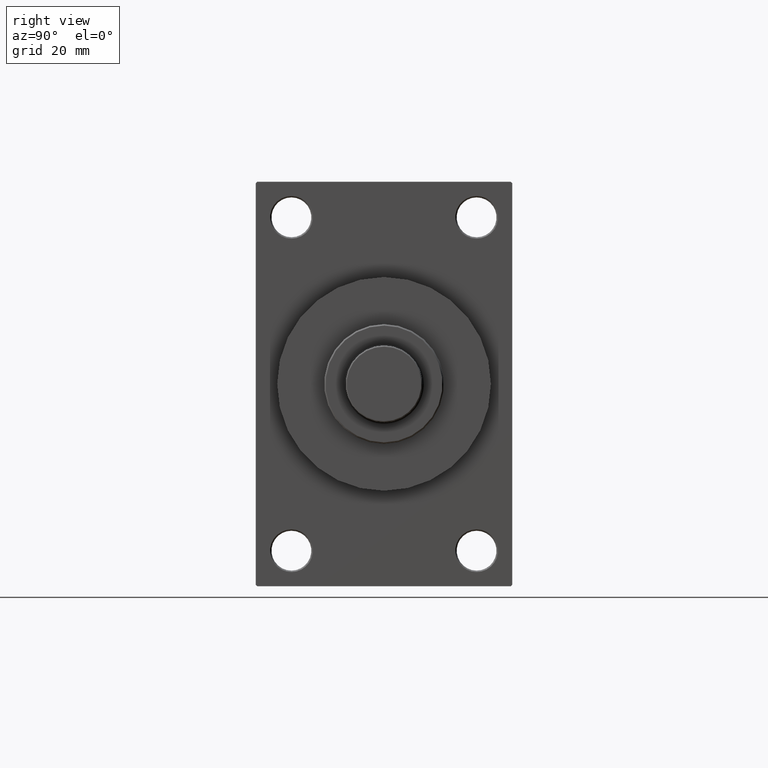
[diagram: clean part render]
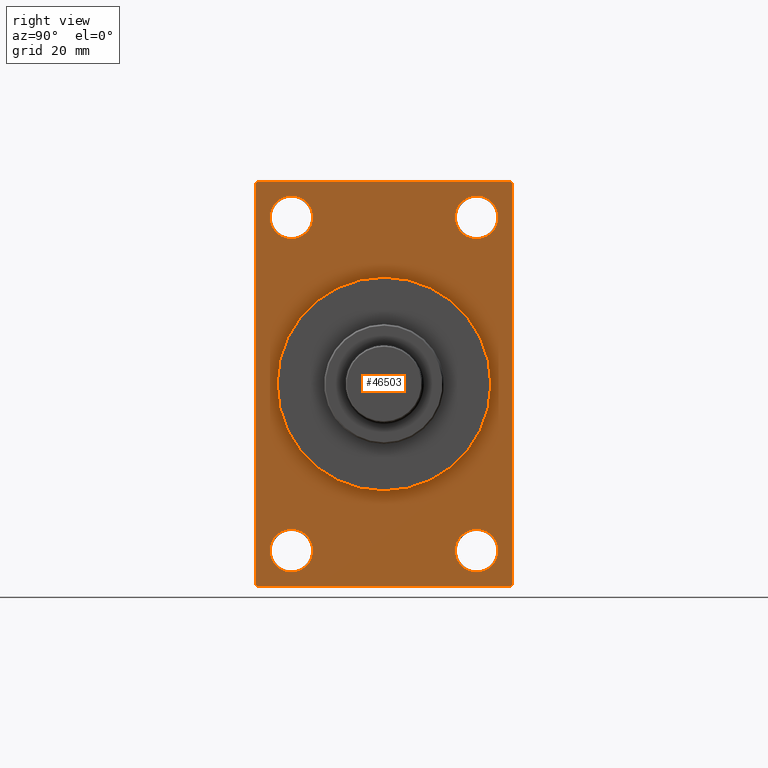
[diagram: same view with one face highlighted and labeled with its STEP entity id]
A machine part, right view. The second image highlights one B-rep face of the part: STEP entity #46503.
In plain terms, the highlighted planar face has unit normal (-1, 0, 0).
Its self-contained STEP definition (entity closure, byte-faithful):
#310 = VERTEX_POINT ( 'NONE', #25509 ) ;
#594 = CARTESIAN_POINT ( 'NONE',  ( 128.0000000000000000, -32.50000000000000000, -51.00000000000000711 ) ) ;
#634 = ORIENTED_EDGE ( 'NONE', *, *, #32244, .T. ) ;
#1052 = CIRCLE ( 'NONE', #46469, 7.499999999999909406 ) ;
#1113 = EDGE_CURVE ( 'NONE', #310, #42053, #42116, .T. ) ;
#1806 = FACE_OUTER_BOUND ( 'NONE', #30801, .T. ) ;
#1874 = DIRECTION ( 'NONE',  ( -0.000000000000000000, -0.7071067811865622277, -0.7071067811865328068 ) ) ;
#1944 = ORIENTED_EDGE ( 'NONE', *, *, #17475, .F. ) ;
#2051 = DIRECTION ( 'NONE',  ( -1.000000000000000000, 0.000000000000000000, -0.000000000000000000 ) ) ;
#2111 = LINE ( 'NONE', #31743, #6573 ) ;
#2783 = DIRECTION ( 'NONE',  ( 0.000000000000000000, 0.000000000000000000, 1.000000000000000000 ) ) ;
#3146 = CARTESIAN_POINT ( 'NONE',  ( 128.0000000000000000, 45.00000000000001421, -70.99999999999998579 ) ) ;
#3278 = CARTESIAN_POINT ( 'NONE',  ( 128.0000000000000000, -44.49999999999995026, 70.99999999999998579 ) ) ;
#3533 = LINE ( 'NONE', #29550, #22862 ) ;
#3542 = AXIS2_PLACEMENT_3D ( 'NONE', #32811, #44167, #7774 ) ;
#3574 = AXIS2_PLACEMENT_3D ( 'NONE', #33011, #32284, #40017 ) ;
#3628 = VERTEX_POINT ( 'NONE', #36366 ) ;
#4149 = CARTESIAN_POINT ( 'NONE',  ( 128.0000000000000000, -32.50000000000000000, 51.00000000000009948 ) ) ;
#4231 = CARTESIAN_POINT ( 'NONE',  ( 128.0000000000000000, 32.50000000000000711, -51.00000000000001421 ) ) ;
#4435 = ORIENTED_EDGE ( 'NONE', *, *, #46058, .T. ) ;
#4474 = AXIS2_PLACEMENT_3D ( 'NONE', #35065, #38687, #28308 ) ;
#4612 = EDGE_CURVE ( 'NONE', #3628, #37193, #18082, .T. ) ;
#4850 = VERTEX_POINT ( 'NONE', #26195 ) ;
#5290 = LINE ( 'NONE', #31060, #16371 ) ;
#5417 = VERTEX_POINT ( 'NONE', #4149 ) ;
#5922 = EDGE_LOOP ( 'NONE', ( #4435, #28217 ) ) ;
#5997 = EDGE_CURVE ( 'NONE', #19362, #36419, #2111, .T. ) ;
#6162 = DIRECTION ( 'NONE',  ( -0.000000000000000000, 0.000000000000000000, 1.000000000000000000 ) ) ;
#6244 = AXIS2_PLACEMENT_3D ( 'NONE', #27636, #46203, #16340 ) ;
#6573 = VECTOR ( 'NONE', #1874, 1000.000000000000000 ) ;
#7186 = CIRCLE ( 'NONE', #13315, 7.499999999999978684 ) ;
#7774 = DIRECTION ( 'NONE',  ( 0.000000000000000000, 0.000000000000000000, 1.000000000000000000 ) ) ;
#8314 = CARTESIAN_POINT ( 'NONE',  ( 128.0000000000000000, 45.00000000000002132, 71.00000000000000000 ) ) ;
#9039 = EDGE_CURVE ( 'NONE', #36419, #36480, #3533, .T. ) ;
#9936 = CARTESIAN_POINT ( 'NONE',  ( 128.0000000000000000, 32.50000000000000711, 58.50000000000000711 ) ) ;
#10739 = VERTEX_POINT ( 'NONE', #32753 ) ;
#11460 = VERTEX_POINT ( 'NONE', #19209 ) ;
#12285 = DIRECTION ( 'NONE',  ( -0.000000000000000000, 0.7071067811865574537, 0.7071067811865376918 ) ) ;
#12348 = EDGE_CURVE ( 'NONE', #35743, #31897, #23705, .T. ) ;
#12642 = VECTOR ( 'NONE', #24374, 999.9999999999998863 ) ;
#13315 = AXIS2_PLACEMENT_3D ( 'NONE', #22820, #15818, #26657 ) ;
#13529 = DIRECTION ( 'NONE',  ( -1.000000000000000000, 0.000000000000000000, -0.000000000000000000 ) ) ;
#13795 = CARTESIAN_POINT ( 'NONE',  ( 128.0000000000000000, -32.50000000000000000, -65.99999999999995737 ) ) ;
#13929 = EDGE_LOOP ( 'NONE', ( #29353, #21802 ) ) ;
#14171 = DIRECTION ( 'NONE',  ( 0.000000000000000000, 0.000000000000000000, -1.000000000000000000 ) ) ;
#14233 = LINE ( 'NONE', #3146, #29235 ) ;
#14664 = EDGE_LOOP ( 'NONE', ( #20687, #45993 ) ) ;
#15818 = DIRECTION ( 'NONE',  ( -1.000000000000000000, 0.000000000000000000, -0.000000000000000000 ) ) ;
#16340 = DIRECTION ( 'NONE',  ( 0.000000000000000000, 0.000000000000000000, 1.000000000000000000 ) ) ;
#16371 = VECTOR ( 'NONE', #12285, 999.9999999999998863 ) ;
#16909 = EDGE_CURVE ( 'NONE', #25109, #11460, #14233, .T. ) ;
#17096 = VERTEX_POINT ( 'NONE', #42863 ) ;
#17475 = EDGE_CURVE ( 'NONE', #42053, #310, #44571, .T. ) ;
#17535 = EDGE_CURVE ( 'NONE', #46803, #43071, #45315, .T. ) ;
#18082 = CIRCLE ( 'NONE', #22729, 7.499999999999978684 ) ;
#18389 = AXIS2_PLACEMENT_3D ( 'NONE', #29291, #32654, #2783 ) ;
#18756 = FACE_BOUND ( 'NONE', #5922, .T. ) ;
#18896 = DIRECTION ( 'NONE',  ( 0.000000000000000000, 0.000000000000000000, -1.000000000000000000 ) ) ;
#18996 = ORIENTED_EDGE ( 'NONE', *, *, #33983, .T. ) ;
#19023 = CARTESIAN_POINT ( 'NONE',  ( 128.0000000000000000, 45.00000000000002132, 70.50000000000000000 ) ) ;
#19044 = DIRECTION ( 'NONE',  ( -1.000000000000000000, 0.000000000000000000, -0.000000000000000000 ) ) ;
#19209 = CARTESIAN_POINT ( 'NONE',  ( 128.0000000000000000, -44.49999999999994316, -71.00000000000000000 ) ) ;
#19362 = VERTEX_POINT ( 'NONE', #3278 ) ;
#19638 = LINE ( 'NONE', #31400, #34835 ) ;
#19687 = FACE_BOUND ( 'NONE', #14664, .T. ) ;
#19799 = AXIS2_PLACEMENT_3D ( 'NONE', #41042, #26335, #18896 ) ;
#20065 = DIRECTION ( 'NONE',  ( 0.000000000000000000, 0.000000000000000000, 1.000000000000000000 ) ) ;
#20154 = CARTESIAN_POINT ( 'NONE',  ( 128.0000000000000000, 0.000000000000000000, 0.000000000000000000 ) ) ;
#20631 = FACE_BOUND ( 'NONE', #20681, .T. ) ;
#20681 = EDGE_LOOP ( 'NONE', ( #41605, #40040 ) ) ;
#20687 = ORIENTED_EDGE ( 'NONE', *, *, #23279, .T. ) ;
#20773 = CARTESIAN_POINT ( 'NONE',  ( 128.0000000000000000, -44.49999999999997158, -71.00000000000000000 ) ) ;
#21389 = LINE ( 'NONE', #44283, #38622 ) ;
#21802 = ORIENTED_EDGE ( 'NONE', *, *, #28534, .T. ) ;
#22425 = VERTEX_POINT ( 'NONE', #19023 ) ;
#22645 = VECTOR ( 'NONE', #40618, 1000.000000000000000 ) ;
#22729 = AXIS2_PLACEMENT_3D ( 'NONE', #37342, #19044, #33720 ) ;
#22820 = CARTESIAN_POINT ( 'NONE',  ( 128.0000000000000000, 32.50000000000000711, -58.50000000000000000 ) ) ;
#22862 = VECTOR ( 'NONE', #44268, 1000.000000000000000 ) ;
#23279 = EDGE_CURVE ( 'NONE', #5417, #17096, #43976, .T. ) ;
#23485 = CARTESIAN_POINT ( 'NONE',  ( 128.0000000000000000, 44.50000000000004263, -70.99999999999998579 ) ) ;
#23705 = CIRCLE ( 'NONE', #4474, 7.499999999999909406 ) ;
#24307 = CIRCLE ( 'NONE', #3542, 7.499999999999909406 ) ;
#24347 = CIRCLE ( 'NONE', #3574, 7.499999999999985789 ) ;
#24374 = DIRECTION ( 'NONE',  ( 0.000000000000000000, 0.7071067811865771047, -0.7071067811865180408 ) ) ;
#25023 = DIRECTION ( 'NONE',  ( 1.000000000000000000, 0.000000000000000000, 0.000000000000000000 ) ) ;
#25109 = VERTEX_POINT ( 'NONE', #23485 ) ;
#25509 = CARTESIAN_POINT ( 'NONE',  ( 128.0000000000000000, 0.000000000000000000, 37.50000000000000711 ) ) ;
#26195 = CARTESIAN_POINT ( 'NONE',  ( 128.0000000000000000, 45.00000000000001421, -70.50000000000001421 ) ) ;
#26335 = DIRECTION ( 'NONE',  ( 1.000000000000000000, 0.000000000000000000, 0.000000000000000000 ) ) ;
#26387 = EDGE_CURVE ( 'NONE', #25109, #4850, #5290, .T. ) ;
#26657 = DIRECTION ( 'NONE',  ( 0.000000000000000000, 0.000000000000000000, 1.000000000000000000 ) ) ;
#26688 = AXIS2_PLACEMENT_3D ( 'NONE', #20154, #2051, #6162 ) ;
#26850 = DIRECTION ( 'NONE',  ( 0.000000000000000000, -1.000000000000000000, -1.541976423090495387E-16 ) ) ;
#27366 = FACE_BOUND ( 'NONE', #31049, .T. ) ;
#27636 = CARTESIAN_POINT ( 'NONE',  ( 128.0000000000000000, -32.50000000000000000, 58.50000000000000711 ) ) ;
#28217 = ORIENTED_EDGE ( 'NONE', *, *, #17535, .T. ) ;
#28308 = DIRECTION ( 'NONE',  ( 0.000000000000000000, 0.000000000000000000, 1.000000000000000000 ) ) ;
#28461 = LINE ( 'NONE', #20773, #12642 ) ;
#28534 = EDGE_CURVE ( 'NONE', #37193, #3628, #7186, .T. ) ;
#28801 = CARTESIAN_POINT ( 'NONE',  ( 128.0000000000000000, -44.99999999999997158, 70.50000000000000000 ) ) ;
#29235 = VECTOR ( 'NONE', #36646, 1000.000000000000000 ) ;
#29291 = CARTESIAN_POINT ( 'NONE',  ( 128.0000000000000000, -32.50000000000000000, -58.49999999999999289 ) ) ;
#29353 = ORIENTED_EDGE ( 'NONE', *, *, #4612, .T. ) ;
#29550 = CARTESIAN_POINT ( 'NONE',  ( 128.0000000000000000, -44.99999999999997158, 70.99999999999998579 ) ) ;
#29771 = CARTESIAN_POINT ( 'NONE',  ( 128.0000000000000000, -44.99999999999997158, -70.50000000000002842 ) ) ;
#29773 = EDGE_CURVE ( 'NONE', #22425, #4850, #33128, .T. ) ;
#30295 = ORIENTED_EDGE ( 'NONE', *, *, #16909, .F. ) ;
#30801 = EDGE_LOOP ( 'NONE', ( #35214, #47185, #30295, #32135, #32636, #634, #18996, #37688 ) ) ;
#30978 = ORIENTED_EDGE ( 'NONE', *, *, #1113, .F. ) ;
#31049 = EDGE_LOOP ( 'NONE', ( #30978, #1944 ) ) ;
#31060 = CARTESIAN_POINT ( 'NONE',  ( 128.0000000000000000, 45.00000000000001421, -70.50000000000001421 ) ) ;
#31400 = CARTESIAN_POINT ( 'NONE',  ( 128.0000000000000000, 45.00000000000002132, 71.00000000000000000 ) ) ;
#31743 = CARTESIAN_POINT ( 'NONE',  ( 128.0000000000000000, -44.99999999999997158, 70.50000000000000000 ) ) ;
#31897 = VERTEX_POINT ( 'NONE', #45571 ) ;
#32135 = ORIENTED_EDGE ( 'NONE', *, *, #26387, .T. ) ;
#32233 = CARTESIAN_POINT ( 'NONE',  ( 128.0000000000000000, 0.000000000000000000, 0.000000000000000000 ) ) ;
#32244 = EDGE_CURVE ( 'NONE', #22425, #10739, #21389, .T. ) ;
#32284 = DIRECTION ( 'NONE',  ( -1.000000000000000000, 0.000000000000000000, -0.000000000000000000 ) ) ;
#32636 = ORIENTED_EDGE ( 'NONE', *, *, #29773, .F. ) ;
#32654 = DIRECTION ( 'NONE',  ( -1.000000000000000000, 0.000000000000000000, -0.000000000000000000 ) ) ;
#32753 = CARTESIAN_POINT ( 'NONE',  ( 128.0000000000000000, 44.50000000000002132, 71.00000000000000000 ) ) ;
#32811 = CARTESIAN_POINT ( 'NONE',  ( 128.0000000000000000, -32.50000000000000000, 58.50000000000000711 ) ) ;
#33011 = CARTESIAN_POINT ( 'NONE',  ( 128.0000000000000000, -32.50000000000000000, -58.49999999999999289 ) ) ;
#33128 = LINE ( 'NONE', #8314, #22645 ) ;
#33427 = FACE_BOUND ( 'NONE', #13929, .T. ) ;
#33720 = DIRECTION ( 'NONE',  ( 0.000000000000000000, 0.000000000000000000, 1.000000000000000000 ) ) ;
#33983 = EDGE_CURVE ( 'NONE', #10739, #19362, #19638, .T. ) ;
#34835 = VECTOR ( 'NONE', #26850, 1000.000000000000000 ) ;
#35065 = CARTESIAN_POINT ( 'NONE',  ( 128.0000000000000000, 32.50000000000000711, 58.50000000000000711 ) ) ;
#35214 = ORIENTED_EDGE ( 'NONE', *, *, #9039, .T. ) ;
#35743 = VERTEX_POINT ( 'NONE', #46196 ) ;
#36075 = AXIS2_PLACEMENT_3D ( 'NONE', #32233, #25023, #14171 ) ;
#36366 = CARTESIAN_POINT ( 'NONE',  ( 128.0000000000000000, 32.50000000000000711, -65.99999999999997158 ) ) ;
#36419 = VERTEX_POINT ( 'NONE', #28801 ) ;
#36480 = VERTEX_POINT ( 'NONE', #29771 ) ;
#36646 = DIRECTION ( 'NONE',  ( 0.000000000000000000, -1.000000000000000000, -1.541976423090495633E-16 ) ) ;
#37193 = VERTEX_POINT ( 'NONE', #4231 ) ;
#37342 = CARTESIAN_POINT ( 'NONE',  ( 128.0000000000000000, 32.50000000000000711, -58.50000000000000000 ) ) ;
#37646 = EDGE_CURVE ( 'NONE', #36480, #11460, #28461, .T. ) ;
#37688 = ORIENTED_EDGE ( 'NONE', *, *, #5997, .T. ) ;
#38224 = PLANE ( 'NONE',  #26688 ) ;
#38622 = VECTOR ( 'NONE', #46929, 1000.000000000000114 ) ;
#38687 = DIRECTION ( 'NONE',  ( -1.000000000000000000, 0.000000000000000000, -0.000000000000000000 ) ) ;
#38935 = EDGE_CURVE ( 'NONE', #31897, #35743, #1052, .T. ) ;
#40017 = DIRECTION ( 'NONE',  ( 0.000000000000000000, 0.000000000000000000, 1.000000000000000000 ) ) ;
#40040 = ORIENTED_EDGE ( 'NONE', *, *, #12348, .T. ) ;
#40618 = DIRECTION ( 'NONE',  ( 0.000000000000000000, -4.886545002751570165E-17, -1.000000000000000000 ) ) ;
#41042 = CARTESIAN_POINT ( 'NONE',  ( 128.0000000000000000, 0.000000000000000000, 0.000000000000000000 ) ) ;
#41605 = ORIENTED_EDGE ( 'NONE', *, *, #38935, .T. ) ;
#42053 = VERTEX_POINT ( 'NONE', #46389 ) ;
#42116 = CIRCLE ( 'NONE', #19799, 37.50000000000000711 ) ;
#42863 = CARTESIAN_POINT ( 'NONE',  ( 128.0000000000000000, -32.50000000000000000, 65.99999999999991473 ) ) ;
#43071 = VERTEX_POINT ( 'NONE', #13795 ) ;
#43976 = CIRCLE ( 'NONE', #6244, 7.499999999999909406 ) ;
#44167 = DIRECTION ( 'NONE',  ( -1.000000000000000000, 0.000000000000000000, -0.000000000000000000 ) ) ;
#44268 = DIRECTION ( 'NONE',  ( 0.000000000000000000, 0.000000000000000000, -1.000000000000000000 ) ) ;
#44283 = CARTESIAN_POINT ( 'NONE',  ( 128.0000000000000000, 44.50000000000002132, 71.00000000000000000 ) ) ;
#44571 = CIRCLE ( 'NONE', #36075, 37.50000000000000711 ) ;
#44951 = EDGE_CURVE ( 'NONE', #17096, #5417, #24307, .T. ) ;
#45315 = CIRCLE ( 'NONE', #18389, 7.499999999999985789 ) ;
#45571 = CARTESIAN_POINT ( 'NONE',  ( 128.0000000000000000, 32.50000000000000711, 51.00000000000009948 ) ) ;
#45993 = ORIENTED_EDGE ( 'NONE', *, *, #44951, .T. ) ;
#46058 = EDGE_CURVE ( 'NONE', #43071, #46803, #24347, .T. ) ;
#46196 = CARTESIAN_POINT ( 'NONE',  ( 128.0000000000000000, 32.50000000000000711, 65.99999999999991473 ) ) ;
#46203 = DIRECTION ( 'NONE',  ( -1.000000000000000000, 0.000000000000000000, -0.000000000000000000 ) ) ;
#46389 = CARTESIAN_POINT ( 'NONE',  ( 128.0000000000000000, 4.592425496802575156E-15, -37.50000000000000711 ) ) ;
#46469 = AXIS2_PLACEMENT_3D ( 'NONE', #9936, #13529, #20065 ) ;
#46503 = ADVANCED_FACE ( 'NONE', ( #19687, #18756, #33427, #20631, #27366, #1806 ), #38224, .F. ) ;
#46803 = VERTEX_POINT ( 'NONE', #594 ) ;
#46929 = DIRECTION ( 'NONE',  ( 0.000000000000000000, -0.7071067811865474617, 0.7071067811865474617 ) ) ;
#47185 = ORIENTED_EDGE ( 'NONE', *, *, #37646, .T. ) ;